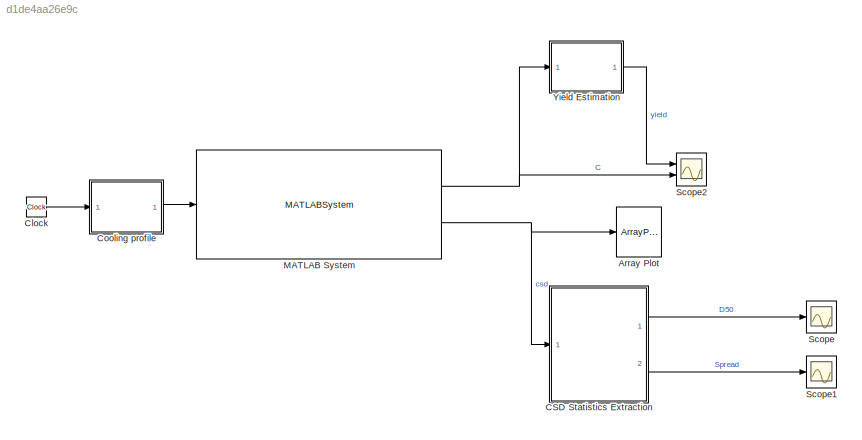
MODEL slx_d1de4aa26e9c
KIND model
CONFIG AbsTol = auto
CONFIG EnableMultiTasking = off
CONFIG FixedStep = auto
CONFIG MaxStep = auto
CONFIG MinStep = auto
CONFIG RelTol = 1e-3
CONFIG SampleTimeConstraint = Unconstrained
CONFIG Solver = VariableStepAuto
CONFIG SolverName = VariableStepAuto
CONFIG StartTime = 0.0
CONFIG StopTime = totalTime
BLOCK [ArrayPlot] Array Plot
  Ports = [1]
  ScopeSpecificationString = dsp.scopes.ArrayPlotBlockSpecification('CurrentConfiguration', extmgr.ConfigurationSet(extmgr.Configuration('Core','General UI',true),extmgr.Configuration('Core','Source UI',true),extmgr.Configuration('Sources','WiredSimulink',true),extmgr.Configuration('Sources','SimulinkEvent',false),extmgr.Configuration('Sources','Simulink',false),extmgr.Configuration('Sources','SPTool',false),extmgr.Configurat...<+3101ch>
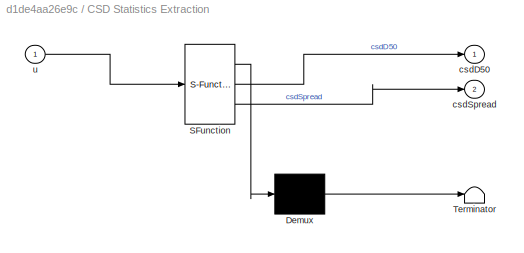
BLOCK [SubSystem] CSD Statistics Extraction
  ErrorFcn = Stateflow.Translate.translate
  PermitHierarchicalResolution = ExplicitOnly
  Ports = [1, 2]
  RequestExecContextInheritance = off
  SFBlockType = MATLAB Function
  TreatAsAtomicUnit = on
BLOCK [Demux] CSD Statistics Extraction/ Demux 
  Outputs = 1
  Ports = [1, 1]
BLOCK [S-Function] CSD Statistics Extraction/ SFunction 
  EnableBusSupport = on
  FunctionName = sf_sfun
  PortCounts = [1 3]
  Ports = [1, 3]
  SFcnIsStateOwnerBlock = off
  SFunctionDeploymentMode = off
  Tag = Stateflow S-Function 2
BLOCK [Terminator] CSD Statistics Extraction/ Terminator 
BLOCK [Outport] CSD Statistics Extraction/csdD50
BLOCK [Outport] CSD Statistics Extraction/csdSpread
  Port = 2
BLOCK [Inport] CSD Statistics Extraction/u
BLOCK [Clock] Clock
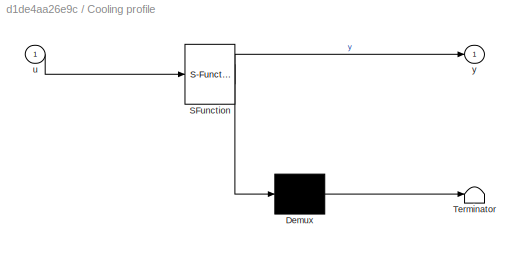
BLOCK [SubSystem] Cooling profile
  ErrorFcn = Stateflow.Translate.translate
  PermitHierarchicalResolution = ExplicitOnly
  Ports = [1, 1]
  RequestExecContextInheritance = off
  SFBlockType = MATLAB Function
  TreatAsAtomicUnit = on
BLOCK [Demux] Cooling profile/ Demux 
  Outputs = 1
  Ports = [1, 1]
BLOCK [S-Function] Cooling profile/ SFunction 
  EnableBusSupport = on
  FunctionName = sf_sfun
  Parameters = pw,totalTime
  PortCounts = [1 2]
  Ports = [1, 2]
  SFcnIsStateOwnerBlock = off
  SFunctionDeploymentMode = off
  Tag = Stateflow S-Function 1
BLOCK [Terminator] Cooling profile/ Terminator 
BLOCK [Inport] Cooling profile/u
BLOCK [Outport] Cooling profile/y
BLOCK [MATLABSystem] MATLAB System
  MaskDisplay = disp('solver_system');\nport_label('input',1,'u');\nport_label('output',1,'c');\nport_label('output',2,'csd1');
  MaskType = solver_system
  Ports = [1, 2]
  SimulateUsing = Interpreted execution
  System = solver_system
  ic = ic
  sampleTimeSecond = sampleTime
  solverObj = s
BLOCK [Scope] Scope
  Floating = off
  NumInputPorts = 1
  Ports = [1]
  ScopeSpecificationString = Simulink.scopes.TimeScopeBlockCfg('CurrentConfiguration', extmgr.ConfigurationSet(extmgr.Configuration('Core','General UI',true),extmgr.Configuration('Core','Source UI',true),extmgr.Configuration('Sources','WiredSimulink',true),extmgr.Configuration('Visuals','Time Domain',true,'SerializedDisplays',{struct('MinYLimReal','-3.58263','MaxYLimReal','32.24368','YLabelReal','','MinYLimMag','0.00000','Max...<+1327ch>
BLOCK [Scope] Scope1
  Floating = off
  NumInputPorts = 1
  Ports = [1]
  ScopeSpecificationString = Simulink.scopes.TimeScopeBlockCfg('CurrentConfiguration', extmgr.ConfigurationSet(extmgr.Configuration('Core','General UI',true),extmgr.Configuration('Core','Source UI',true),extmgr.Configuration('Sources','WiredSimulink',true,'DataLoggingVariableName','ScopeData1'),extmgr.Configuration('Visuals','Time Domain',true,'SerializedDisplays',{struct('MinYLimReal','-4.87928','MaxYLimReal','65.91766','YLa...<+1369ch>
BLOCK [Scope] Scope2
  Floating = off
  NumInputPorts = 2
  Ports = [2]
  ScopeSpecificationString = Simulink.scopes.TimeScopeBlockCfg('CurrentConfiguration', extmgr.ConfigurationSet(extmgr.Configuration('Core','General UI',true),extmgr.Configuration('Core','Source UI',true),extmgr.Configuration('Sources','WiredSimulink',true,'DataLoggingVariableName','ScopeData1'),extmgr.Configuration('Visuals','Time Domain',true,'SerializedDisplays',{struct('MinYLimReal','-0.10183','MaxYLimReal','0.91644','YLab...<+2000ch>
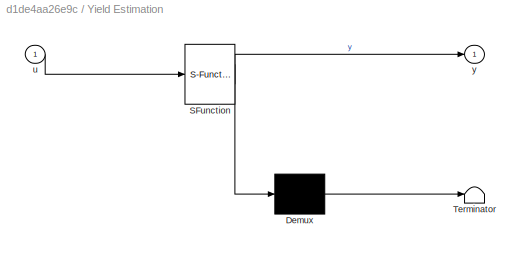
BLOCK [SubSystem] Yield Estimation
  ErrorFcn = Stateflow.Translate.translate
  PermitHierarchicalResolution = ExplicitOnly
  Ports = [1, 1]
  RequestExecContextInheritance = off
  SFBlockType = MATLAB Function
  TreatAsAtomicUnit = on
BLOCK [Demux] Yield Estimation/ Demux 
  Outputs = 1
  Ports = [1, 1]
BLOCK [S-Function] Yield Estimation/ SFunction 
  EnableBusSupport = on
  FunctionName = sf_sfun
  Parameters = initConc
  PortCounts = [1 2]
  Ports = [1, 2]
  SFcnIsStateOwnerBlock = off
  SFunctionDeploymentMode = off
  Tag = Stateflow S-Function 3
BLOCK [Terminator] Yield Estimation/ Terminator 
BLOCK [Inport] Yield Estimation/u
BLOCK [Outport] Yield Estimation/y
LINE CSD Statistics Extraction:1 -> Scope:1
LINE CSD Statistics Extraction:2 -> Scope1:1
LINE Clock:1 -> Cooling profile:1
LINE Cooling profile:1 -> MATLAB System:1
NET MATLAB System:1 -> Scope2:2, Yield Estimation:1
NET MATLAB System:2 -> Array Plot:1, CSD Statistics Extraction:1
LINE Yield Estimation:1 -> Scope2:1
note: NET lines group one-source signal fan-out (src -> all destinations, sorted); 1:1 wires keep LINE
CHART CSD Statistics Extraction states=1 transitions=1
  STATE_LABEL 'eML_blk_kernel()'
  STATE_LABEL 'SCRIPT:\nfunction [csdD50, csdSpread] = fcn(u)\ncumulative = cumtrapz(u);\nnormalized = cumulative/cumulative(end);\nnormalized = normalized(normalized<1.0);\nif numel(normalized) <= 2\n    csdD50 = 0;\n    csdSpread = NaN;\n    return;\nend\ng = linspace(0, numel(normalized), numel(normalized));\n\ncsdD50 = interp1(normalized, g, 0.5);\ny = interp1(normalized, g, [0.9 0.1]);\n\ncsdSpread = y(1)-y(2);'
CHART Yield Estimation states=1 transitions=1
  STATE_LABEL 'eML_blk_kernel()'
  STATE_LABEL 'SCRIPT:\nfunction y = fcn(u, initConc)\nsolute = initConc;\nprodSolid = initConc - u;\n\ny = prodSolid/solute;\n'
CHART Cooling profile states=1 transitions=1
  STATE_LABEL 'eML_blk_kernel()'
  STATE_LABEL 'SCRIPT:\nfunction y = fcn(u, pw, totalTime)\n\ny = (1-(u/totalTime).^pw) * 40 + 10;\n'
CHART  states=0 transitions=0
CHART  states=0 transitions=0
CHART  states=0 transitions=0
